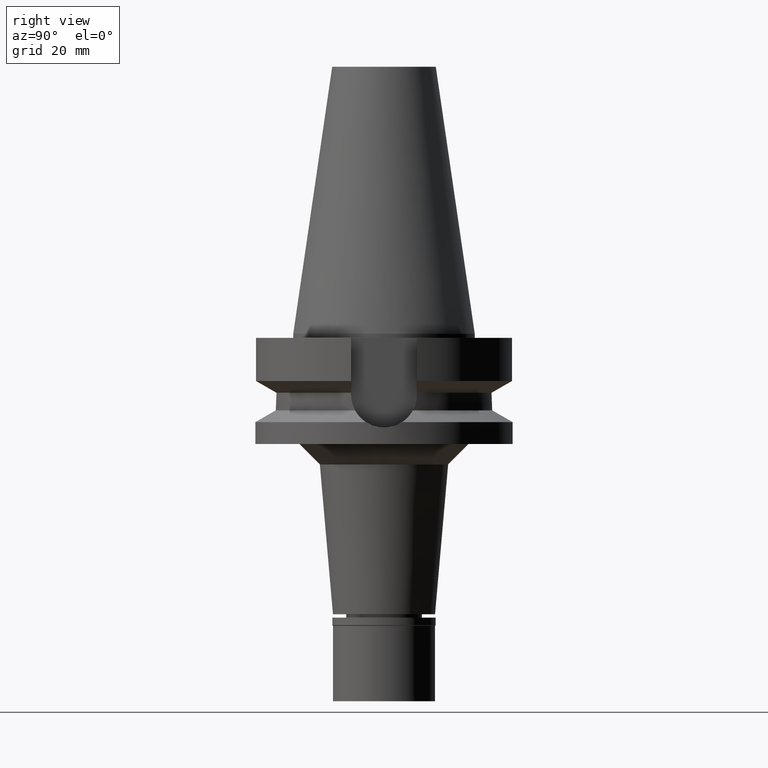
[diagram: clean part render]
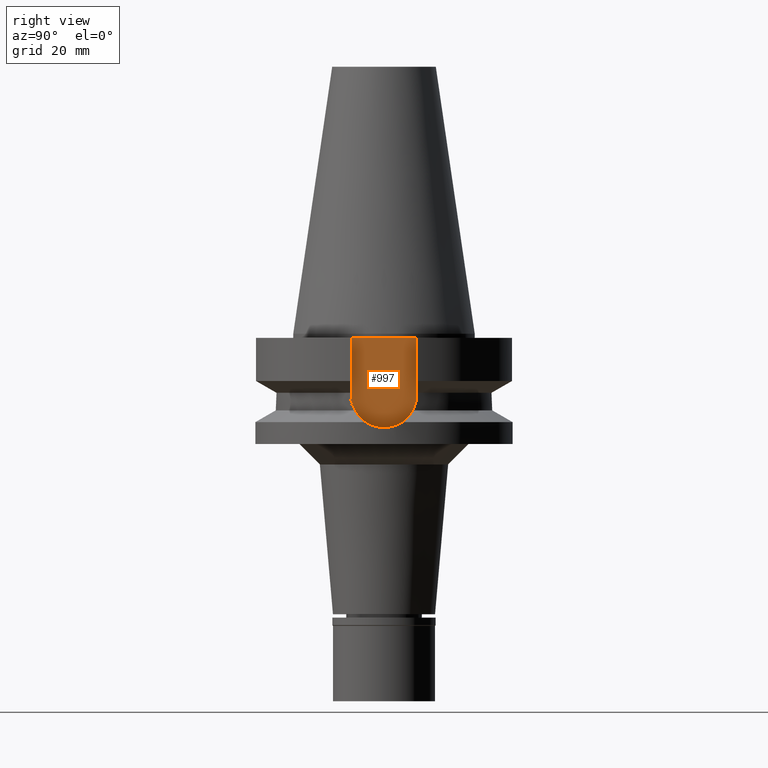
[diagram: same view with one face highlighted and labeled with its STEP entity id]
A machine part, right view. The second image highlights one B-rep face of the part: STEP entity #997.
In plain terms, the highlighted planar face has unit normal (1, 0, 0).
Its self-contained STEP definition (entity closure, byte-faithful):
#98 = EDGE_CURVE ( 'NONE', #364, #158, #779, .T. ) ;
#130 = ORIENTED_EDGE ( 'NONE', *, *, #955, .F. ) ;
#158 = VERTEX_POINT ( 'NONE', #2338 ) ;
#312 = LINE ( 'NONE', #2969, #1858 ) ;
#364 = VERTEX_POINT ( 'NONE', #1197 ) ;
#540 = CARTESIAN_POINT ( 'NONE',  ( 22.50000000000000000, -8.050000000000000711, -14.94999999999999929 ) ) ;
#779 = LINE ( 'NONE', #795, #1712 ) ;
#793 = AXIS2_PLACEMENT_3D ( 'NONE', #2058, #3042, #2748 ) ;
#795 = CARTESIAN_POINT ( 'NONE',  ( 22.50000000000000000, 8.050000000000000711, -1.000000000000000000 ) ) ;
#871 = FACE_OUTER_BOUND ( 'NONE', #1791, .T. ) ;
#955 = EDGE_CURVE ( 'NONE', #1277, #158, #1741, .T. ) ;
#997 = ADVANCED_FACE ( 'NONE', ( #871 ), #2296, .T. ) ;
#1048 = DIRECTION ( 'NONE',  ( 0.0000000000000000000, 0.0000000000000000000, 1.000000000000000000 ) ) ;
#1158 = VECTOR ( 'NONE', #1048, 1000.000000000000000 ) ;
#1197 = CARTESIAN_POINT ( 'NONE',  ( 22.50000000000000000, 8.050000000000000711, -1.000000000000000000 ) ) ;
#1233 = EDGE_CURVE ( 'NONE', #364, #1545, #312, .T. ) ;
#1277 = VERTEX_POINT ( 'NONE', #2983 ) ;
#1416 = ORIENTED_EDGE ( 'NONE', *, *, #1468, .F. ) ;
#1468 = EDGE_CURVE ( 'NONE', #1545, #1277, #1608, .T. ) ;
#1530 = DIRECTION ( 'NONE',  ( 0.0000000000000000000, 0.0000000000000000000, -1.000000000000000000 ) ) ;
#1545 = VERTEX_POINT ( 'NONE', #2812 ) ;
#1608 = CIRCLE ( 'NONE', #793, 8.050000000000000711 ) ;
#1659 = AXIS2_PLACEMENT_3D ( 'NONE', #2333, #2113, #2097 ) ;
#1712 = VECTOR ( 'NONE', #2722, 1000.000000000000000 ) ;
#1735 = ORIENTED_EDGE ( 'NONE', *, *, #98, .T. ) ;
#1741 = LINE ( 'NONE', #540, #1158 ) ;
#1791 = EDGE_LOOP ( 'NONE', ( #130, #1416, #2901, #1735 ) ) ;
#1858 = VECTOR ( 'NONE', #1530, 1000.000000000000000 ) ;
#2058 = CARTESIAN_POINT ( 'NONE',  ( 22.50000000000000000, 0.0000000000000000000, -14.94999999999999929 ) ) ;
#2097 = DIRECTION ( 'NONE',  ( 0.0000000000000000000, 1.000000000000000000, 0.0000000000000000000 ) ) ;
#2113 = DIRECTION ( 'NONE',  ( 1.000000000000000000, 0.0000000000000000000, 0.0000000000000000000 ) ) ;
#2296 = PLANE ( 'NONE',  #1659 ) ;
#2333 = CARTESIAN_POINT ( 'NONE',  ( 22.50000000000000000, 0.0000000000000000000, 0.0000000000000000000 ) ) ;
#2338 = CARTESIAN_POINT ( 'NONE',  ( 22.50000000000000000, -8.050000000000000711, -1.000000000000000000 ) ) ;
#2722 = DIRECTION ( 'NONE',  ( 0.0000000000000000000, -1.000000000000000000, 0.0000000000000000000 ) ) ;
#2748 = DIRECTION ( 'NONE',  ( 0.0000000000000000000, 0.0000000000000000000, -1.000000000000000000 ) ) ;
#2812 = CARTESIAN_POINT ( 'NONE',  ( 22.50000000000000000, 8.050000000000000711, -14.94999999999999929 ) ) ;
#2901 = ORIENTED_EDGE ( 'NONE', *, *, #1233, .F. ) ;
#2969 = CARTESIAN_POINT ( 'NONE',  ( 22.50000000000000000, 8.050000000000000711, -1.000000000000000000 ) ) ;
#2983 = CARTESIAN_POINT ( 'NONE',  ( 22.50000000000000000, -8.050000000000000711, -14.94999999999999929 ) ) ;
#3042 = DIRECTION ( 'NONE',  ( -1.000000000000000000, 0.0000000000000000000, 0.0000000000000000000 ) ) ;